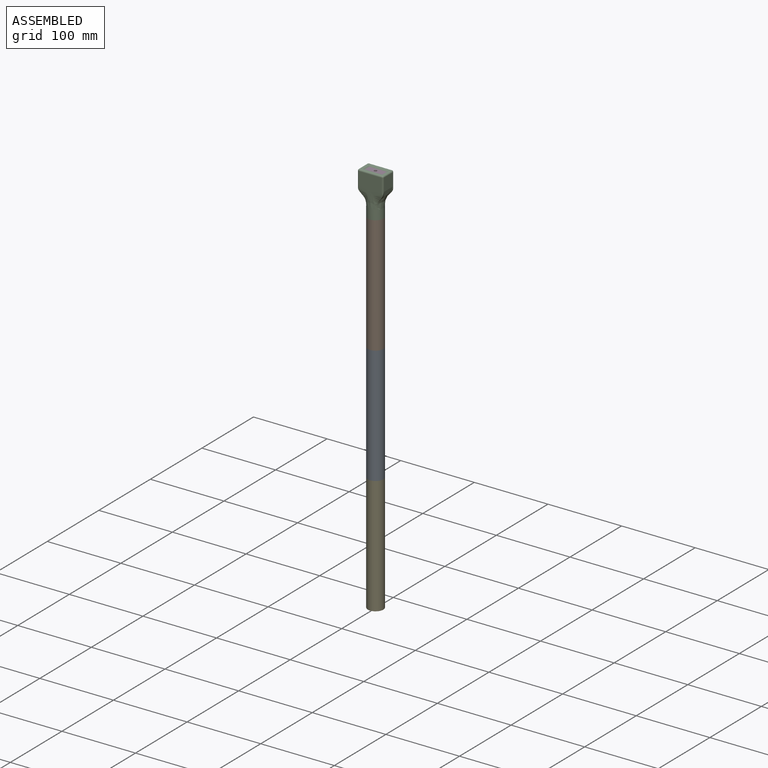
[diagram: assembled view]
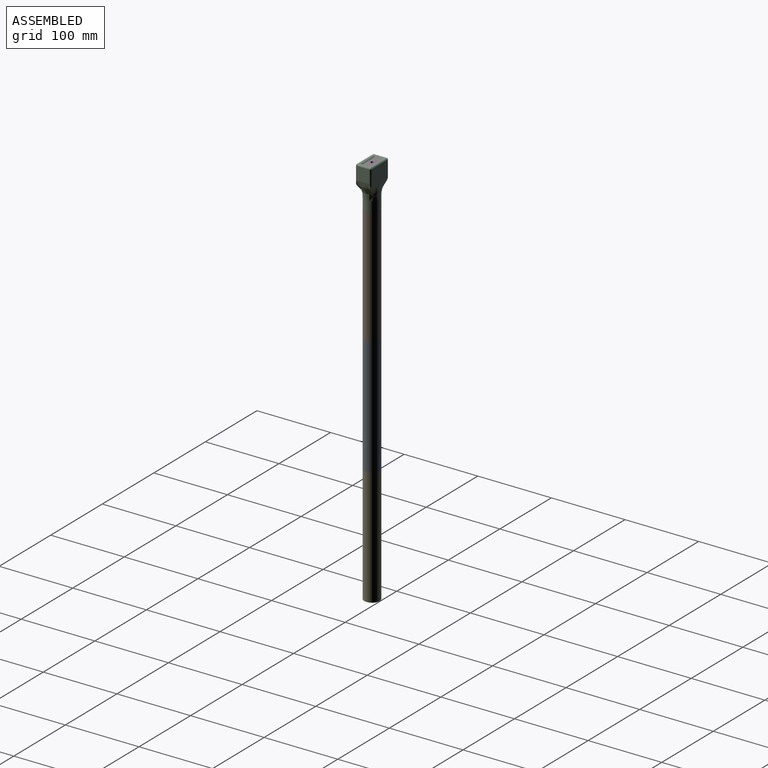
[diagram: assembled view, second angle]
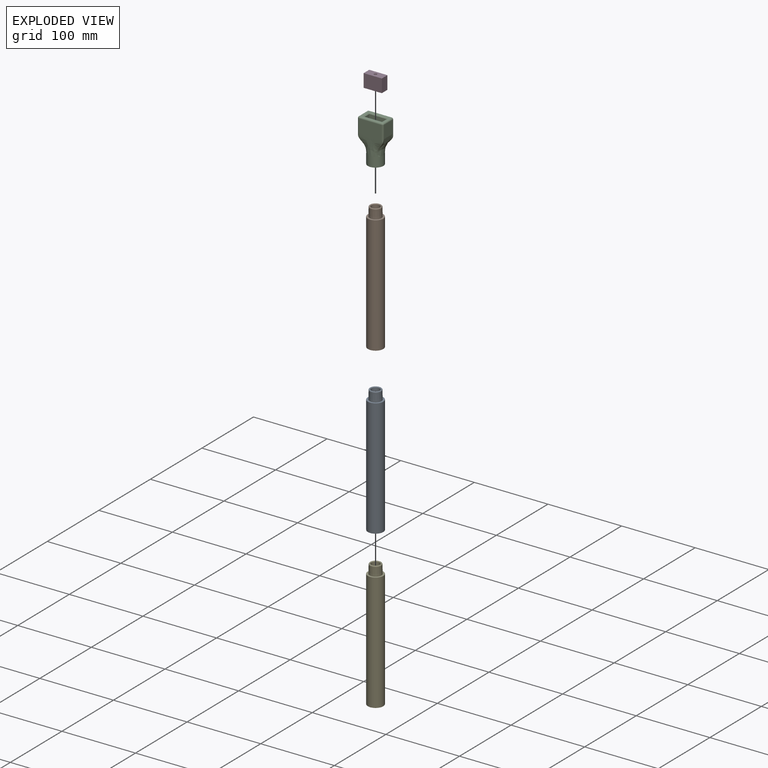
[diagram: exploded view]
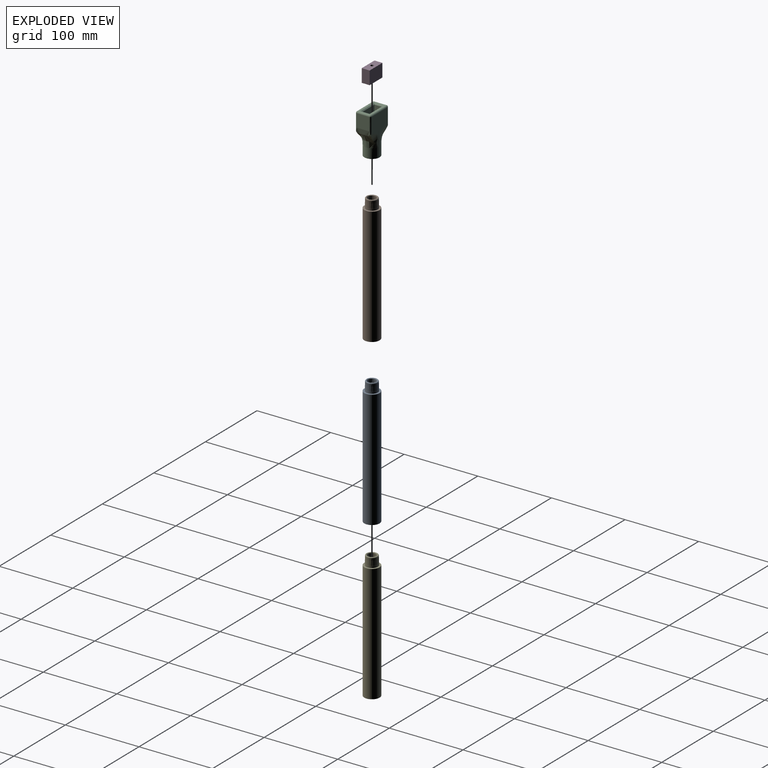
[diagram: exploded view, second angle]
ASSEMBLY  parts=5 mates=5
PART A: 15 faces, bbox 20.9x20.9x172.8 mm
  f0: cylinder r=5.45mm len=145.99mm, axis (0,0,-1), area 4999.2mm2, adj f11,f12
  f1: cone r=5.45mm half-angle=1deg, axis (0,0,-1), area 412.1mm2, adj f12,f13
  f2: cone r=7.95mm half-angle=1deg, axis (0,0,1), area 582.7mm2, adj f6,f14
  f3: plane 13.49x13.49mm, normal (0,0,-1), area 3.7mm2, adj f13,f14
  f4: cylinder r=10.45mm len=160mm, axis (0,0,-1), area 10505.5mm2, adj f5,f6
  f5: plane 20.9x20.9mm, normal (0,0,1), area 91.4mm2, adj f4,f9
  f6: plane 20.9x20.9mm, normal (0,0,-1), area 144.5mm2, adj f2,f4
  f7: plane 15.9x15.9mm, normal (0,0,1), area 67.9mm2, adj f8,f11
  f8: cylinder r=7.95mm len=15.9mm, axis (0,0,1), area 578.7mm2, adj f7,f10
  f9: cone r=7.95mm half-angle=45deg, axis (0,0,1), area 54mm2, adj f5,f10
  f10: torus R=8.95mm, axis (0,0,-1), area 39.7mm2, adj f8,f9
  f11: torus R=6.45mm, axis (0,0,1), area 57.4mm2, adj f0,f7
  f12: torus R=6.45mm, axis (0,0,1), area 0.6mm2, adj f0,f1
  f13: torus R=6.66mm, axis (0,0,-1), area 58.8mm2, adj f1,f3
  f14: torus R=6.74mm, axis (0,0,-1), area 72mm2, adj f2,f3
PART B: same geometry as A
PART C: 44 faces, bbox 45.9x30.9x67.5 mm
  f0: plane 15.9x15.9mm, normal (0,0,1), area 105.2mm2, adj f19,f20,f21,f22,f27
  f1: plane 24.9x10.9mm, normal (0,0,1), area 34.8mm2, adj f7,f8,f9,f10,f15,f16,f17,f18
  f2: plane 30.9x16.9mm, normal (0,0,-1), area 106.5mm2, adj f30,f31,f32,f33,f35,f36,f39,f40
  f3: plane 30.9x17.5mm, normal (0,-1,0), area 540.7mm2, adj f14,f23,f26,f35
  f4: plane 17.5x16.9mm, normal (-1,0,0), area 295.7mm2, adj f13,f23,f24,f39
  f5: plane 30.9x17.5mm, normal (0,1,0), area 540.7mm2, adj f12,f24,f25,f40
  f6: plane 17.5x16.9mm, normal (1,0,0), area 295.7mm2, adj f11,f25,f26,f36
  f7: plane 25.73x0.91mm, normal (0,0.71,-0.71), area 32.1mm2, adj f1,f8,f10,f32
  f8: plane 11.73x0.91mm, normal (0.71,0,-0.71), area 14mm2, adj f1,f7,f9,f30
  f9: plane 25.73x0.91mm, normal (0,-0.71,-0.71), area 32.1mm2, adj f1,f8,f10,f31
  f10: plane 11.73x0.91mm, normal (-0.71,0,-0.71), area 14mm2, adj f1,f7,f9,f33
  f11: offset ~35x30.9mm, area 475.5mm2, adj f6,f12,f14,f25,f26,f28
  f12: offset ~45.86x35mm, area 599.7mm2, adj f5,f11,f13,f24,f25,f28
  f13: offset ~35x30.9mm, area 475.5mm2, adj f4,f12,f14,f23,f24,f28
  f14: offset ~45.87x35mm, area 599.7mm2, adj f3,f11,f13,f23,f26,f28
  f15: plane 18x10.9mm, normal (-1,0,0), area 196.2mm2, adj f1,f16,f18,f19
  f16: plane 24.9x18mm, normal (0,-1,0), area 448.2mm2, adj f1,f15,f17,f20
  f17: plane 18x10.9mm, normal (1,0,0), area 196.2mm2, adj f1,f16,f18,f21
  f18: plane 24.9x18mm, normal (0,1,0), area 448.2mm2, adj f1,f15,f17,f22
  f19: bspline ~25x15.9mm, area 249.9mm2, adj f0,f15,f20,f22
  f20: bspline ~34.9x25mm, area 374.2mm2, adj f0,f16,f19,f21
  f21: bspline ~25x15.9mm, area 249.9mm2, adj f0,f17,f20,f22
  f22: bspline ~34.9x25mm, area 374.2mm2, adj f0,f18,f19,f21
  f23: cylinder r=2mm len=22.3mm, axis (0,0,1), area 62.5mm2, adj f3,f4,f13,f14,f37
  f24: cylinder r=2mm len=22.3mm, axis (0,0,-1), area 62.5mm2, adj f4,f5,f12,f13,f41
  f25: cylinder r=2mm len=22.3mm, axis (0,0,1), area 62.5mm2, adj f5,f6,f11,f12,f38
  f26: cylinder r=2mm len=22.3mm, axis (0,0,-1), area 62.5mm2, adj f3,f6,f11,f14,f34
  f27: cylinder r=7.95mm len=15.9mm, axis (0,0,-1), area 578.7mm2, adj f0,f43
  f28: cylinder r=10.45mm len=20.9mm, axis (0,0,-1), area 853.6mm2, adj f11,f12,f13,f14,f29
  f29: plane 20.9x20.9mm, normal (0,0,1), area 91.4mm2, adj f28,f42
  f30: cylinder r=2mm len=14.56mm, axis (0,-1,0), area 20.6mm2, adj f2,f8,f31,f32
  f31: cylinder r=2mm len=28.56mm, axis (1,0,0), area 42.6mm2, adj f2,f9,f30,f33
  f32: cylinder r=2mm len=28.56mm, axis (1,0,0), area 42.6mm2, adj f2,f7,f30,f33
  f33: cylinder r=2mm len=14.56mm, axis (0,-1,0), area 20.6mm2, adj f2,f10,f31,f32
  f34: sphere r=2mm, area 6.3mm2, adj f26,f35,f36
  f35: cylinder r=2mm len=30.9mm, axis (1,0,0), area 97.1mm2, adj f2,f3,f34,f37
  f36: cylinder r=2mm len=16.9mm, axis (0,1,0), area 53.1mm2, adj f2,f6,f34,f38
  f37: sphere r=2mm, area 6.3mm2, adj f23,f35,f39
  f38: sphere r=2mm, area 6.3mm2, adj f25,f36,f40
  f39: cylinder r=2mm len=16.9mm, axis (0,-1,0), area 53.1mm2, adj f2,f4,f37,f41
  f40: cylinder r=2mm len=30.9mm, axis (-1,0,0), area 97.1mm2, adj f2,f5,f38,f41
  f41: sphere r=2mm, area 6.3mm2, adj f24,f39,f40
  f42: cone r=7.95mm half-angle=45deg, axis (0,0,1), area 54mm2, adj f29,f43
  f43: torus R=8.95mm, axis (0,0,-1), area 39.7mm2, adj f27,f42
PART D: 7 faces, bbox 24.7x10.8x18 mm
  f0: plane 18x10.78mm, normal (1,0,0), area 194mm2, adj f1,f4,f5,f6
  f1: plane 24.7x18mm, normal (0,1,0), area 444.6mm2, adj f0,f2,f5,f6
  f2: plane 18x10.78mm, normal (-1,0,0), area 194mm2, adj f1,f4,f5,f6
  f3: cylinder r=1.98mm len=18mm, axis (0,0,-1), area 223.9mm2, adj f5,f6
  f4: plane 24.7x18mm, normal (0,-1,0), area 444.6mm2, adj f0,f2,f5,f6
  f5: plane 24.7x10.78mm, normal (0,0,1), area 253.9mm2, adj f0,f1,f2,f3,f4
  f6: plane 24.7x10.78mm, normal (0,0,-1), area 253.9mm2, adj f0,f1,f2,f3,f4
PART E: same geometry as A
PLACE A rot(axis=(1,0,0),180deg) t=(54.71,-55.27,-103.78)mm
PLACE B rot(axis=(1,0,0),180deg) t=(54.71,-55.27,56.22)mm
PLACE C rot(axis=(1,0,0),180deg) t=(54.71,-55.27,12.22)mm
PLACE D t=(54.61,-55.21,-5.78)mm
PLACE E rot(axis=(1,0,0),180deg) t=(54.71,-55.27,-263.78)mm
MATE fastened E.f0 <-> A.f0  axis (0,0,1) through (54.71,-55.27,-363.78)mm
MATE fastened C.f18 <-> D.f1  axis (0,-1,0) through (42.26,-49.82,12.22)mm
MATE cylindrical B.f0 <-> C.f27  axis (0,0,1) through (54.71,-55.27,-43.78)mm
MATE fastened B.f0 <-> C.f27  axis (0,0,1) through (54.71,-55.27,-43.78)mm
MATE fastened A.f0 <-> B.f0  axis (0,0,1) through (54.71,-55.27,-203.78)mm
